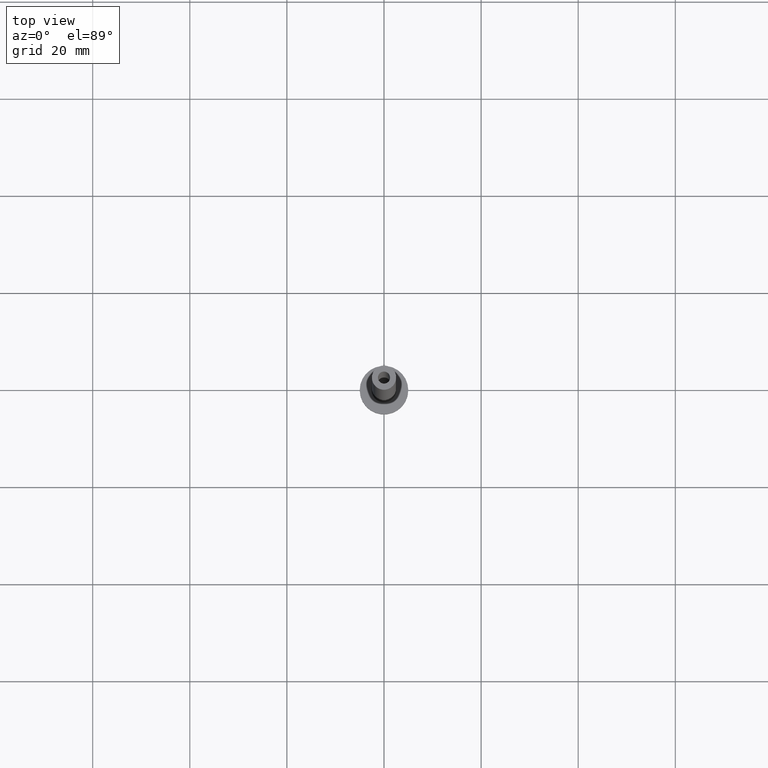
[diagram: clean part render]
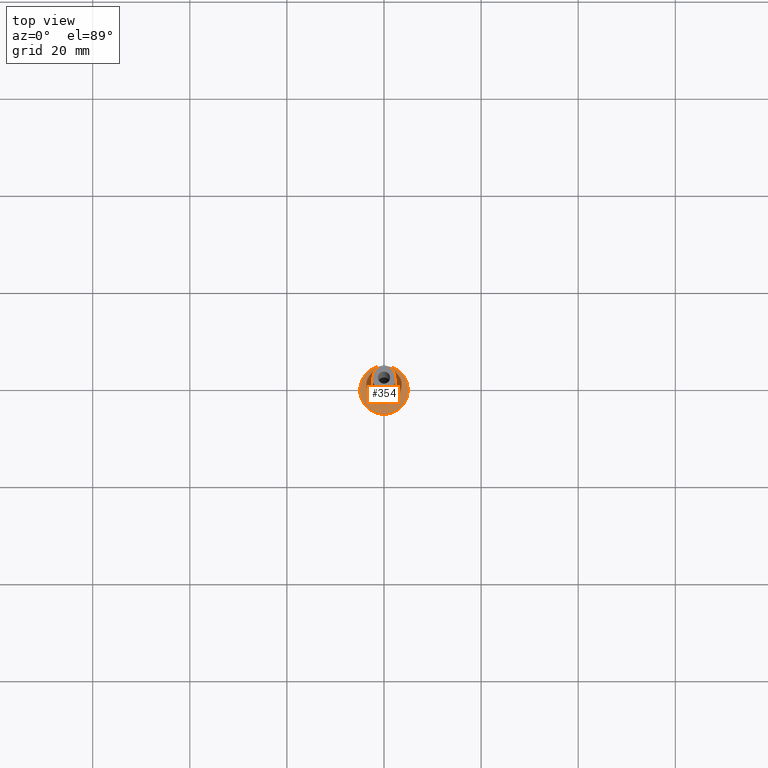
[diagram: same view with one face highlighted and labeled with its STEP entity id]
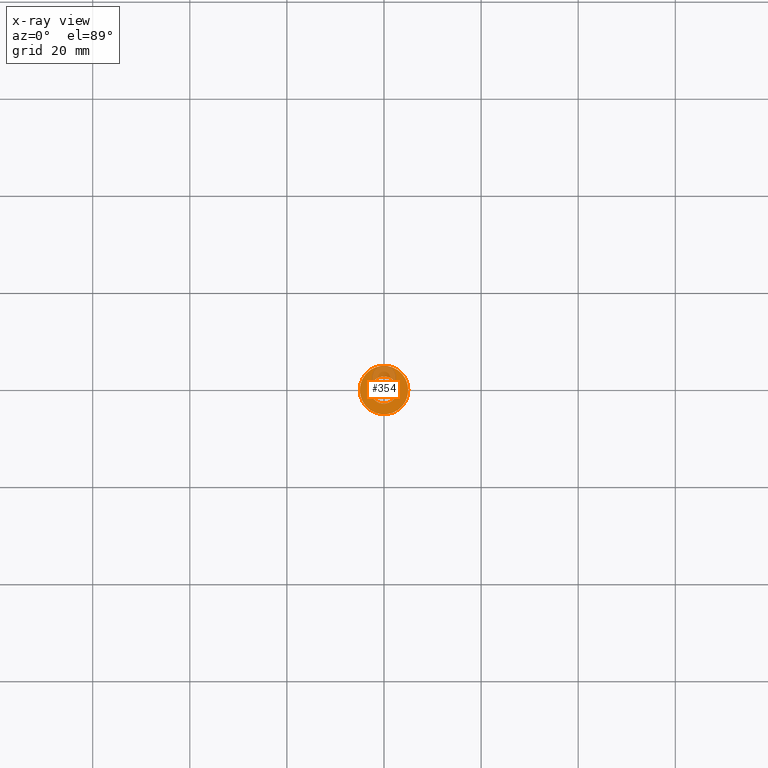
[diagram: x-ray of the same camera — body ghosted, the highlighted face saturated]
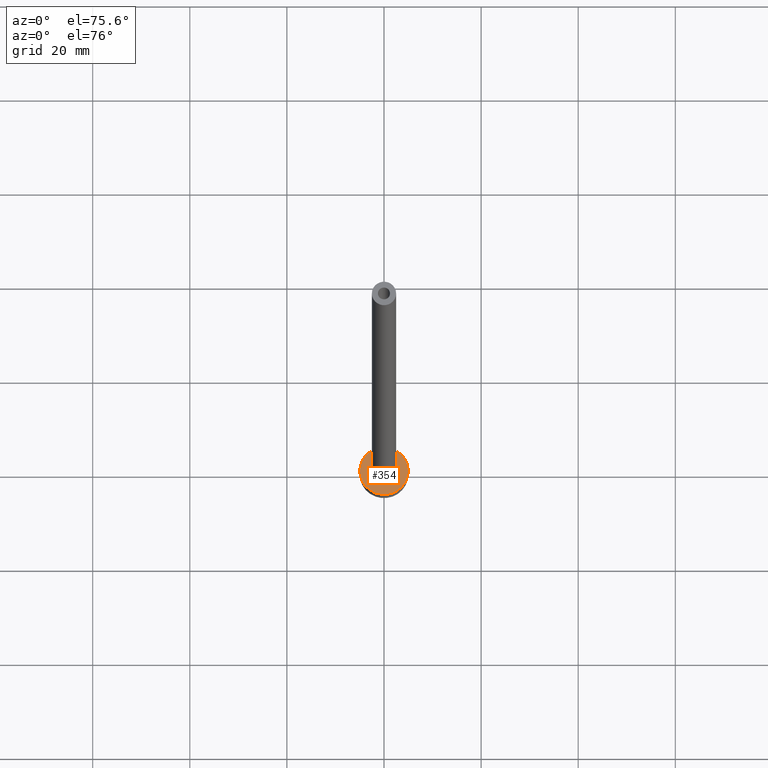
[diagram: same view with one face highlighted and labeled with its STEP entity id]
A machine part, top view. The second image highlights one B-rep face of the part: STEP entity #354.
The next image is the same camera in x-ray: the body ghosted, the highlighted face saturated — about 20% of this face is hidden behind the body in this view.
A second angle (auxiliary view) of the same face is appended — the face is thin or edge-on in the first view.
In plain terms, the highlighted planar face has unit normal (0, 0, 1).
Its self-contained STEP definition (entity closure, byte-faithful):
#32 = CIRCLE ( 'NONE', #369, 2.799999999999999822 ) ;
#38 = DIRECTION ( 'NONE',  ( 1.000000000000000000, 0.000000000000000000, 0.000000000000000000 ) ) ;
#44 = DIRECTION ( 'NONE',  ( 0.000000000000000000, 0.000000000000000000, 1.000000000000000000 ) ) ;
#53 = DIRECTION ( 'NONE',  ( 1.000000000000000000, 0.000000000000000000, 0.000000000000000000 ) ) ;
#61 = EDGE_CURVE ( 'NONE', #412, #252, #32, .T. ) ;
#72 = DIRECTION ( 'NONE',  ( 0.000000000000000000, 0.000000000000000000, 1.000000000000000000 ) ) ;
#75 = CARTESIAN_POINT ( 'NONE',  ( -2.799999999999999822, 3.429011037612589276E-16, 2.999999999999998668 ) ) ;
#78 = EDGE_CURVE ( 'NONE', #134, #98, #417, .T. ) ;
#80 = CARTESIAN_POINT ( 'NONE',  ( 5.000000000000000000, 6.123233995736766282E-16, 3.000000000000000000 ) ) ;
#85 = AXIS2_PLACEMENT_3D ( 'NONE', #432, #97, #53 ) ;
#97 = DIRECTION ( 'NONE',  ( -0.000000000000000000, -0.000000000000000000, -1.000000000000000000 ) ) ;
#98 = VERTEX_POINT ( 'NONE', #324 ) ;
#101 = FACE_OUTER_BOUND ( 'NONE', #379, .T. ) ;
#107 = PLANE ( 'NONE',  #280 ) ;
#130 = ORIENTED_EDGE ( 'NONE', *, *, #136, .T. ) ;
#134 = VERTEX_POINT ( 'NONE', #80 ) ;
#136 = EDGE_CURVE ( 'NONE', #98, #134, #455, .T. ) ;
#141 = DIRECTION ( 'NONE',  ( 0.000000000000000000, 0.000000000000000000, 1.000000000000000000 ) ) ;
#157 = CARTESIAN_POINT ( 'NONE',  ( 2.799999999999999822, 0.000000000000000000, 2.999999999999998668 ) ) ;
#167 = ORIENTED_EDGE ( 'NONE', *, *, #61, .T. ) ;
#171 = EDGE_LOOP ( 'NONE', ( #335, #167 ) ) ;
#216 = DIRECTION ( 'NONE',  ( 1.000000000000000000, 0.000000000000000000, 0.000000000000000000 ) ) ;
#244 = DIRECTION ( 'NONE',  ( 1.000000000000000000, 0.000000000000000000, -0.000000000000000000 ) ) ;
#247 = EDGE_CURVE ( 'NONE', #252, #412, #288, .T. ) ;
#252 = VERTEX_POINT ( 'NONE', #157 ) ;
#253 = CARTESIAN_POINT ( 'NONE',  ( 0.000000000000000000, 0.000000000000000000, 3.000000000000000000 ) ) ;
#256 = DIRECTION ( 'NONE',  ( -0.000000000000000000, -0.000000000000000000, -1.000000000000000000 ) ) ;
#280 = AXIS2_PLACEMENT_3D ( 'NONE', #313, #141, #244 ) ;
#288 = CIRCLE ( 'NONE', #85, 2.799999999999999822 ) ;
#313 = CARTESIAN_POINT ( 'NONE',  ( 0.000000000000000000, 0.000000000000000000, 3.000000000000000000 ) ) ;
#324 = CARTESIAN_POINT ( 'NONE',  ( -5.000000000000000000, 0.000000000000000000, 3.000000000000000000 ) ) ;
#327 = CARTESIAN_POINT ( 'NONE',  ( 0.000000000000000000, 0.000000000000000000, 3.000000000000000000 ) ) ;
#335 = ORIENTED_EDGE ( 'NONE', *, *, #247, .T. ) ;
#346 = AXIS2_PLACEMENT_3D ( 'NONE', #327, #72, #216 ) ;
#354 = ADVANCED_FACE ( 'NONE', ( #415, #101 ), #107, .T. ) ;
#364 = AXIS2_PLACEMENT_3D ( 'NONE', #253, #44, #425 ) ;
#369 = AXIS2_PLACEMENT_3D ( 'NONE', #427, #256, #38 ) ;
#379 = EDGE_LOOP ( 'NONE', ( #130, #441 ) ) ;
#412 = VERTEX_POINT ( 'NONE', #75 ) ;
#415 = FACE_BOUND ( 'NONE', #171, .T. ) ;
#417 = CIRCLE ( 'NONE', #364, 5.000000000000000000 ) ;
#425 = DIRECTION ( 'NONE',  ( 1.000000000000000000, 0.000000000000000000, 0.000000000000000000 ) ) ;
#427 = CARTESIAN_POINT ( 'NONE',  ( 0.000000000000000000, 0.000000000000000000, 3.000000000000000000 ) ) ;
#432 = CARTESIAN_POINT ( 'NONE',  ( 0.000000000000000000, 0.000000000000000000, 3.000000000000000000 ) ) ;
#441 = ORIENTED_EDGE ( 'NONE', *, *, #78, .T. ) ;
#455 = CIRCLE ( 'NONE', #346, 5.000000000000000000 ) ;